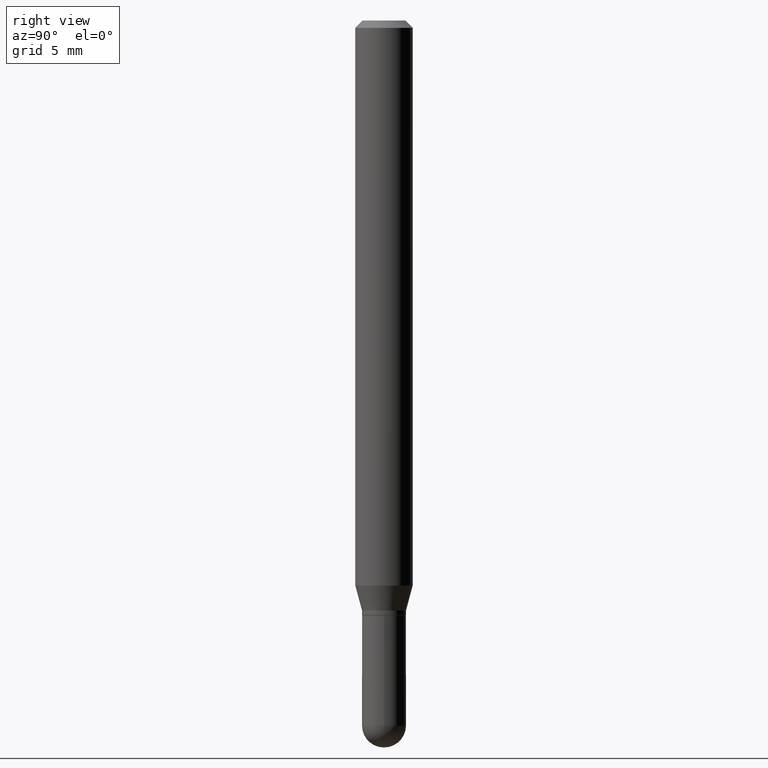
[diagram: clean part render]
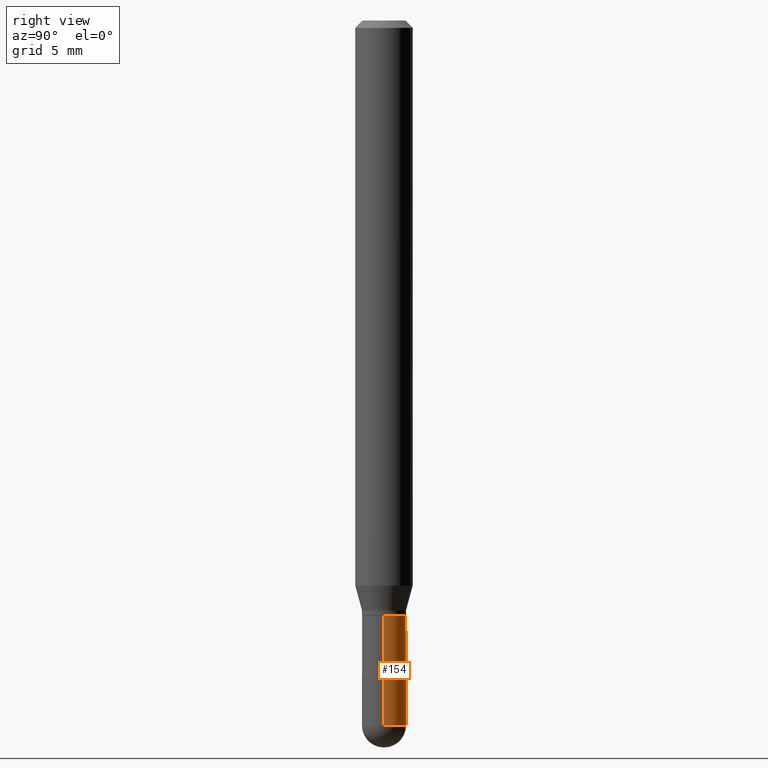
[diagram: same view with one face highlighted and labeled with its STEP entity id]
A machine part, right view. The second image highlights one B-rep face of the part: STEP entity #154.
In plain terms, the highlighted cylindrical surface (edge-blend (fillet) strip) has radius 1.1506 mm, axis along (-0, 0, 1).
Its self-contained STEP definition (entity closure, byte-faithful):
#28 = CARTESIAN_POINT ( 'NONE',  ( 2.994232006293080857E-29, -4.274969751279546755E-15, -1.224399999999999933 ) ) ;
#30 = VERTEX_POINT ( 'NONE', #469 ) ;
#31 = VECTOR ( 'NONE', #383, 39.37007874015748143 ) ;
#36 = DIRECTION ( 'NONE',  ( 1.000000000000000000, -6.982962677686269866E-15, 0.000000000000000000 ) ) ;
#38 = DIRECTION ( 'NONE',  ( 1.000000000000000000, -6.982962677686271444E-15, 0.000000000000000000 ) ) ;
#39 = DIRECTION ( 'NONE',  ( 1.000000000000000000, -6.982962677686266711E-15, 4.876176775795936353E-29 ) ) ;
#48 = EDGE_CURVE ( 'NONE', #390, #424, #206, .T. ) ;
#54 = EDGE_CURVE ( 'NONE', #30, #369, #334, .T. ) ;
#78 = EDGE_LOOP ( 'NONE', ( #196, #483, #226, #183, #303 ) ) ;
#120 = DIRECTION ( 'NONE',  ( -2.445468806185136597E-29, 3.491481338843145583E-15, 1.000000000000000000 ) ) ;
#121 = AXIS2_PLACEMENT_3D ( 'NONE', #28, #191, #38 ) ;
#136 = CARTESIAN_POINT ( 'NONE',  ( -0.04530000000000000693, 3.218758592993254334E-16, -2.228277595885472564E-30 ) ) ;
#146 = CARTESIAN_POINT ( 'NONE',  ( -0.04529999999999999999, -4.348329579537264718E-15, -1.224399999999999933 ) ) ;
#154 = ADVANCED_FACE ( 'NONE', ( #164 ), #288, .T. ) ;
#162 = DIRECTION ( 'NONE',  ( 1.000000000000000000, -6.982962677686269866E-15, 0.000000000000000000 ) ) ;
#164 = FACE_OUTER_BOUND ( 'NONE', #78, .T. ) ;
#183 = ORIENTED_EDGE ( 'NONE', *, *, #422, .F. ) ;
#191 = DIRECTION ( 'NONE',  ( -2.445468806185136597E-29, 3.491481338843145583E-15, 1.000000000000000000 ) ) ;
#196 = ORIENTED_EDGE ( 'NONE', *, *, #54, .T. ) ;
#198 = LINE ( 'NONE', #428, #31 ) ;
#206 = CIRCLE ( 'NONE', #121, 0.04529999999999999999 ) ;
#211 = CARTESIAN_POINT ( 'NONE',  ( 0.000000000000000000, 0.000000000000000000, 0.000000000000000000 ) ) ;
#226 = ORIENTED_EDGE ( 'NONE', *, *, #48, .F. ) ;
#227 = CARTESIAN_POINT ( 'NONE',  ( 3.547886144013395202E-29, -5.065441126393634337E-15, -1.450799999999999645 ) ) ;
#252 = EDGE_CURVE ( 'NONE', #369, #424, #456, .T. ) ;
#256 = DIRECTION ( 'NONE',  ( -2.445468806185136877E-29, 3.491481338843145188E-15, 1.000000000000000000 ) ) ;
#263 = VECTOR ( 'NONE', #256, 39.37007874015748143 ) ;
#280 = AXIS2_PLACEMENT_3D ( 'NONE', #227, #120, #36 ) ;
#288 = CYLINDRICAL_SURFACE ( 'NONE', #292, 0.04530000000000000693 ) ;
#292 = AXIS2_PLACEMENT_3D ( 'NONE', #211, #329, #39 ) ;
#303 = ORIENTED_EDGE ( 'NONE', *, *, #439, .T. ) ;
#329 = DIRECTION ( 'NONE',  ( -2.445468806185136597E-29, 3.491481338843145583E-15, 1.000000000000000000 ) ) ;
#334 = CIRCLE ( 'NONE', #452, 0.04530000000000000693 ) ;
#339 = CARTESIAN_POINT ( 'NONE',  ( 0.04530000000000000693, -4.986533648135779220E-15, -1.450799999999999645 ) ) ;
#362 = CARTESIAN_POINT ( 'NONE',  ( 3.547886144013395202E-29, -5.065441126393634337E-15, -1.450799999999999645 ) ) ;
#366 = DIRECTION ( 'NONE',  ( -2.445468806185136597E-29, 3.491481338843145583E-15, 1.000000000000000000 ) ) ;
#369 = VERTEX_POINT ( 'NONE', #497 ) ;
#383 = DIRECTION ( 'NONE',  ( -2.445468806185136877E-29, 3.491481338843145188E-15, 1.000000000000000000 ) ) ;
#390 = VERTEX_POINT ( 'NONE', #404 ) ;
#404 = CARTESIAN_POINT ( 'NONE',  ( 0.04529999999999999999, -4.591297960578735035E-15, -1.224399999999999933 ) ) ;
#422 = EDGE_CURVE ( 'NONE', #507, #390, #198, .T. ) ;
#424 = VERTEX_POINT ( 'NONE', #146 ) ;
#428 = CARTESIAN_POINT ( 'NONE',  ( 0.04530000000000000693, -3.163282092991879344E-16, 2.208908079435559539E-30 ) ) ;
#439 = EDGE_CURVE ( 'NONE', #507, #30, #442, .T. ) ;
#442 = CIRCLE ( 'NONE', #280, 0.04530000000000000693 ) ;
#452 = AXIS2_PLACEMENT_3D ( 'NONE', #362, #366, #162 ) ;
#456 = LINE ( 'NONE', #136, #263 ) ;
#469 = CARTESIAN_POINT ( 'NONE',  ( 3.218758592993602912E-16, 0.04529999999999485133, -1.450800000000000090 ) ) ;
#483 = ORIENTED_EDGE ( 'NONE', *, *, #252, .T. ) ;
#497 = CARTESIAN_POINT ( 'NONE',  ( -0.04530000000000000693, -4.348329579537264718E-15, -1.450799999999999645 ) ) ;
#507 = VERTEX_POINT ( 'NONE', #339 ) ;